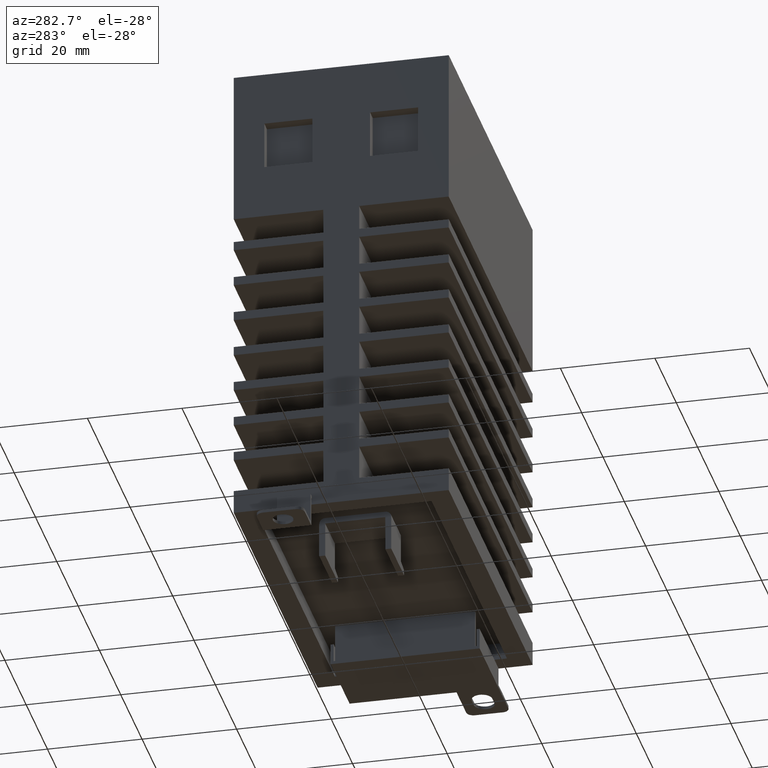
[diagram: clean part render]
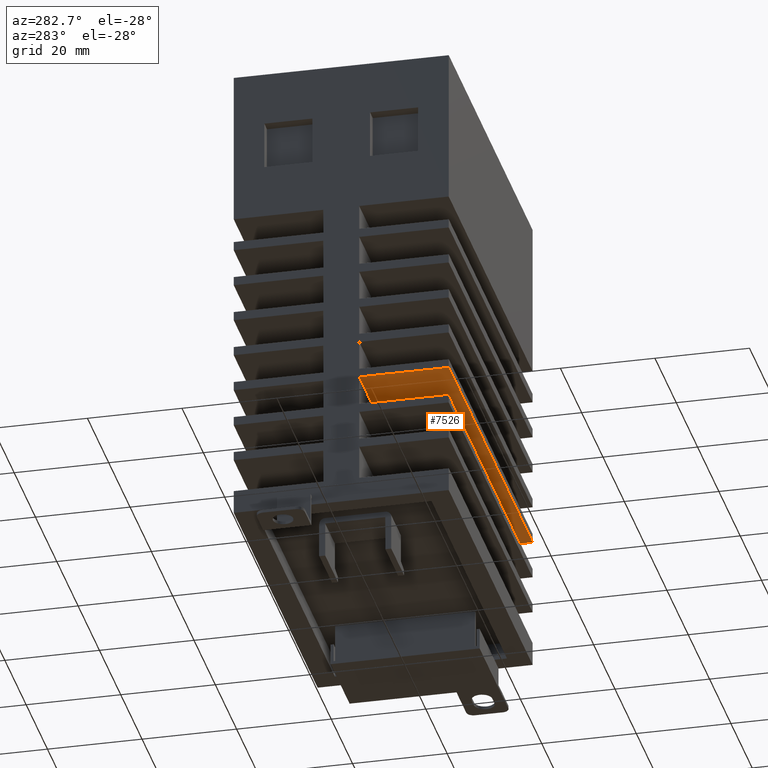
[diagram: same view with one face highlighted and labeled with its STEP entity id]
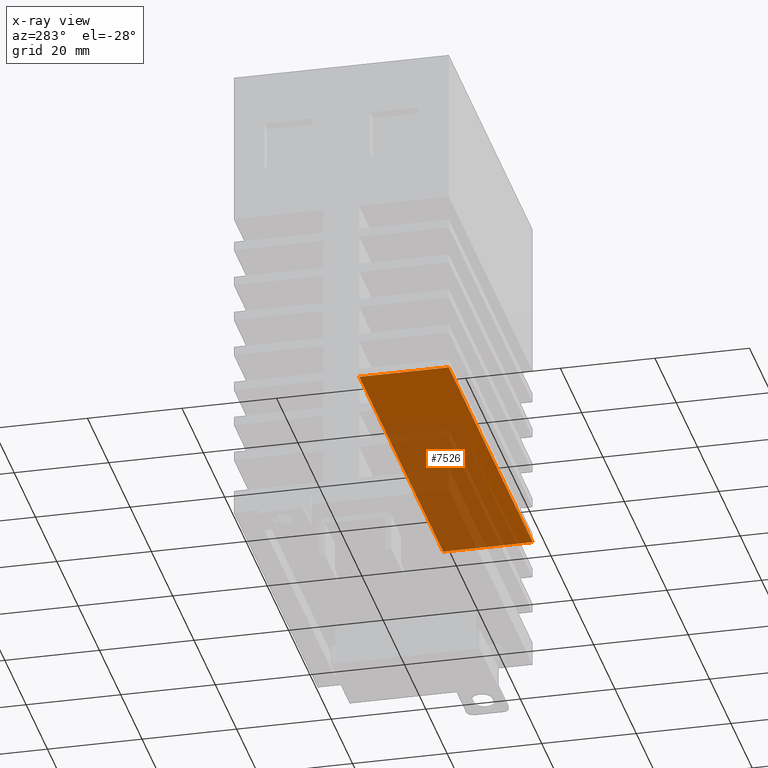
[diagram: x-ray of the same camera — body ghosted, the highlighted face saturated]
A machine part, auxiliary view. The second image highlights one B-rep face of the part: STEP entity #7526.
The next image is the same camera in x-ray: the body ghosted, the highlighted face saturated — about 59% of this face is hidden behind the body in this view.
In plain terms, the highlighted planar face has unit normal (0, 0, 1).
Its self-contained STEP definition (entity closure, byte-faithful):
#472 = PLANE ( 'NONE',  #2583 ) ;
#534 = ORIENTED_EDGE ( 'NONE', *, *, #1926, .T. ) ;
#560 = VECTOR ( 'NONE', #6122, 39.37007874015748100 ) ;
#1109 = VERTEX_POINT ( 'NONE', #7273 ) ;
#1756 = CARTESIAN_POINT ( 'NONE',  ( -2.220446049250311400E-016, -0.8950000000000000200, 1.328125000000000200 ) ) ;
#1828 = CARTESIAN_POINT ( 'NONE',  ( 0.0000000000000000000, 2.220446049250311400E-016, 1.328125000000000200 ) ) ;
#1878 = VECTOR ( 'NONE', #8205, 39.37007874015748100 ) ;
#1926 = EDGE_CURVE ( 'EDGE494', #1109, #7050, #5774, .T. ) ;
#2085 = CARTESIAN_POINT ( 'NONE',  ( -3.673819061467134500E-017, -0.1499999999999999900, 1.328125000000000200 ) ) ;
#2506 = DIRECTION ( 'NONE',  ( 1.000000000000000000, -1.094764425253759900E-047, -4.930380657631320000E-032 ) ) ;
#2569 = CARTESIAN_POINT ( 'NONE',  ( -1.549999999999999800, -0.1499999999999996100, 1.328125000000000200 ) ) ;
#2583 = AXIS2_PLACEMENT_3D ( 'NONE', #1828, #6513, #2506 ) ;
#2856 = VERTEX_POINT ( 'NONE', #5334 ) ;
#2917 = CARTESIAN_POINT ( 'NONE',  ( 1.549999999999999800, -1.110223024625157500E-016, 1.328125000000000200 ) ) ;
#3404 = EDGE_LOOP ( 'NONE', ( #6575, #5083, #7726, #534 ) ) ;
#3636 = LINE ( 'NONE', #2917, #1878 ) ;
#5083 = ORIENTED_EDGE ( 'NONE', *, *, #8194, .T. ) ;
#5334 = CARTESIAN_POINT ( 'NONE',  ( 1.549999999999999800, -0.8950000000000000200, 1.328125000000000200 ) ) ;
#5348 = CARTESIAN_POINT ( 'NONE',  ( -1.549999999999999800, 5.551115123125787600E-016, 1.328125000000000200 ) ) ;
#5464 = DIRECTION ( 'NONE',  ( 2.220446049250310400E-016, 1.000000000000000000, -2.220446049250310400E-016 ) ) ;
#5774 = LINE ( 'NONE', #5348, #5890 ) ;
#5780 = DIRECTION ( 'NONE',  ( -1.000000000000000000, 2.220446049250310400E-016, 0.0000000000000000000 ) ) ;
#5890 = VECTOR ( 'NONE', #5464, 39.37007874015748100 ) ;
#5915 = EDGE_CURVE ( 'EDGE492', #2856, #1109, #6415, .T. ) ;
#6122 = DIRECTION ( 'NONE',  ( 1.000000000000000000, -2.449212707644750100E-016, 5.079640228321329800E-033 ) ) ;
#6215 = FACE_OUTER_BOUND ( 'NONE', #3404, .T. ) ;
#6223 = VECTOR ( 'NONE', #5780, 39.37007874015748100 ) ;
#6415 = LINE ( 'NONE', #1756, #6223 ) ;
#6513 = DIRECTION ( 'NONE',  ( 4.930380657631320000E-032, 2.220446049250310400E-016, 1.000000000000000000 ) ) ;
#6575 = ORIENTED_EDGE ( 'NONE', *, *, #8022, .T. ) ;
#6751 = CARTESIAN_POINT ( 'NONE',  ( 1.549999999999999800, -0.1500000000000004100, 1.328125000000000200 ) ) ;
#7050 = VERTEX_POINT ( 'NONE', #2569 ) ;
#7273 = CARTESIAN_POINT ( 'NONE',  ( -1.549999999999999800, -0.8950000000000000200, 1.328125000000000200 ) ) ;
#7402 = LINE ( 'NONE', #2085, #560 ) ;
#7526 = ADVANCED_FACE ( 'FACE183', ( #6215 ), #472, .F. ) ;
#7726 = ORIENTED_EDGE ( 'NONE', *, *, #5915, .T. ) ;
#7853 = VERTEX_POINT ( 'NONE', #6751 ) ;
#8022 = EDGE_CURVE ( 'EDGE493', #7050, #7853, #7402, .T. ) ;
#8194 = EDGE_CURVE ( 'EDGE356', #7853, #2856, #3636, .T. ) ;
#8205 = DIRECTION ( 'NONE',  ( -2.220446049250310400E-016, -1.000000000000000000, 2.220446049250310400E-016 ) ) ;